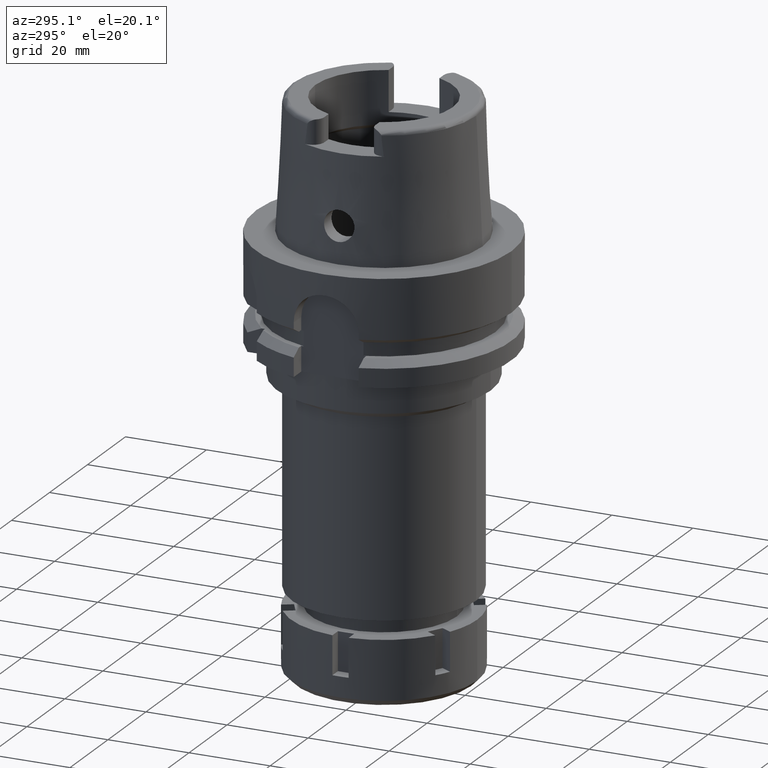
[diagram: clean part render]
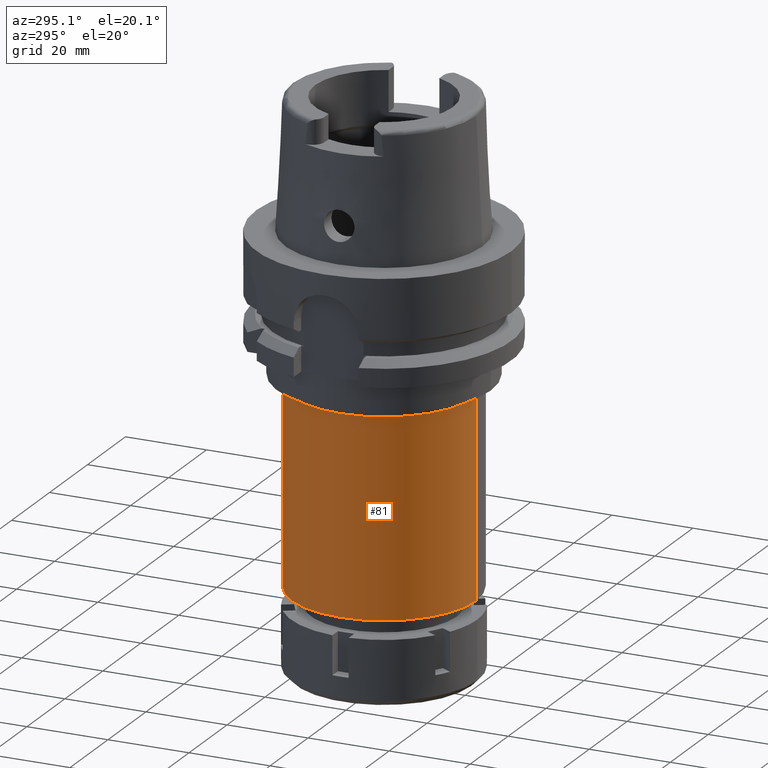
[diagram: same view with one face highlighted and labeled with its STEP entity id]
A machine part, auxiliary view. The second image highlights one B-rep face of the part: STEP entity #81.
In plain terms, the highlighted cylindrical surface (partial cylindrical patch) has radius 22.75 mm, axis along (0, 0, 1).
Its self-contained STEP definition (entity closure, byte-faithful):
#56 = VERTEX_POINT ( 'NONE', #3055 ) ;
#81 = ADVANCED_FACE ( 'NONE', ( #163 ), #4432, .T. ) ;
#163 = FACE_OUTER_BOUND ( 'NONE', #2424, .T. ) ;
#279 = CIRCLE ( 'NONE', #4625, 22.75000000000000000 ) ;
#281 = AXIS2_PLACEMENT_3D ( 'NONE', #4126, #5663, #5138 ) ;
#835 = AXIS2_PLACEMENT_3D ( 'NONE', #2960, #2036, #1049 ) ;
#866 = EDGE_CURVE ( 'NONE', #56, #4185, #5863, .T. ) ;
#936 = ORIENTED_EDGE ( 'NONE', *, *, #866, .T. ) ;
#1049 = DIRECTION ( 'NONE',  ( 0.0000000000000000000, 1.000000000000000000, 0.0000000000000000000 ) ) ;
#1637 = CARTESIAN_POINT ( 'NONE',  ( 0.0000000000000000000, -22.75000000000000000, -84.50000000000000000 ) ) ;
#1742 = CARTESIAN_POINT ( 'NONE',  ( 0.0000000000000000000, 0.0000000000000000000, -36.00000000000000000 ) ) ;
#1827 = ORIENTED_EDGE ( 'NONE', *, *, #2985, .F. ) ;
#1925 = LINE ( 'NONE', #5333, #4425 ) ;
#1954 = DIRECTION ( 'NONE',  ( 0.0000000000000000000, 0.0000000000000000000, -1.000000000000000000 ) ) ;
#1958 = ORIENTED_EDGE ( 'NONE', *, *, #3263, .T. ) ;
#2036 = DIRECTION ( 'NONE',  ( 0.0000000000000000000, 0.0000000000000000000, 1.000000000000000000 ) ) ;
#2424 = EDGE_LOOP ( 'NONE', ( #1958, #1827, #2855, #936 ) ) ;
#2512 = DIRECTION ( 'NONE',  ( 0.0000000000000000000, 0.0000000000000000000, -1.000000000000000000 ) ) ;
#2574 = CARTESIAN_POINT ( 'NONE',  ( 0.0000000000000000000, 22.75000000000000000, -36.00000000000000000 ) ) ;
#2662 = EDGE_CURVE ( 'NONE', #3604, #56, #279, .T. ) ;
#2855 = ORIENTED_EDGE ( 'NONE', *, *, #2662, .T. ) ;
#2960 = CARTESIAN_POINT ( 'NONE',  ( 0.0000000000000000000, 0.0000000000000000000, -103.4500000000000028 ) ) ;
#2985 = EDGE_CURVE ( 'NONE', #3604, #4783, #1925, .T. ) ;
#3055 = CARTESIAN_POINT ( 'NONE',  ( 0.0000000000000000000, 22.75000000000000000, -36.00000000000000000 ) ) ;
#3263 = EDGE_CURVE ( 'NONE', #4185, #4783, #3428, .T. ) ;
#3428 = CIRCLE ( 'NONE', #281, 22.75000000000000000 ) ;
#3604 = VERTEX_POINT ( 'NONE', #5659 ) ;
#4126 = CARTESIAN_POINT ( 'NONE',  ( 0.0000000000000000000, 0.0000000000000000000, -84.50000000000000000 ) ) ;
#4185 = VERTEX_POINT ( 'NONE', #4412 ) ;
#4412 = CARTESIAN_POINT ( 'NONE',  ( 0.0000000000000000000, 22.75000000000000000, -84.50000000000000000 ) ) ;
#4425 = VECTOR ( 'NONE', #1954, 1000.000000000000000 ) ;
#4432 = CYLINDRICAL_SURFACE ( 'NONE', #835, 22.75000000000000000 ) ;
#4625 = AXIS2_PLACEMENT_3D ( 'NONE', #1742, #4941, #5898 ) ;
#4783 = VERTEX_POINT ( 'NONE', #1637 ) ;
#4941 = DIRECTION ( 'NONE',  ( 0.0000000000000000000, 0.0000000000000000000, -1.000000000000000000 ) ) ;
#5138 = DIRECTION ( 'NONE',  ( 0.0000000000000000000, 1.000000000000000000, 0.0000000000000000000 ) ) ;
#5333 = CARTESIAN_POINT ( 'NONE',  ( 0.0000000000000000000, -22.75000000000000000, -36.00000000000000000 ) ) ;
#5659 = CARTESIAN_POINT ( 'NONE',  ( 0.0000000000000000000, -22.75000000000000000, -36.00000000000000000 ) ) ;
#5663 = DIRECTION ( 'NONE',  ( 0.0000000000000000000, 0.0000000000000000000, 1.000000000000000000 ) ) ;
#5863 = LINE ( 'NONE', #2574, #6080 ) ;
#5898 = DIRECTION ( 'NONE',  ( 0.0000000000000000000, -1.000000000000000000, 0.0000000000000000000 ) ) ;
#6080 = VECTOR ( 'NONE', #2512, 1000.000000000000000 ) ;